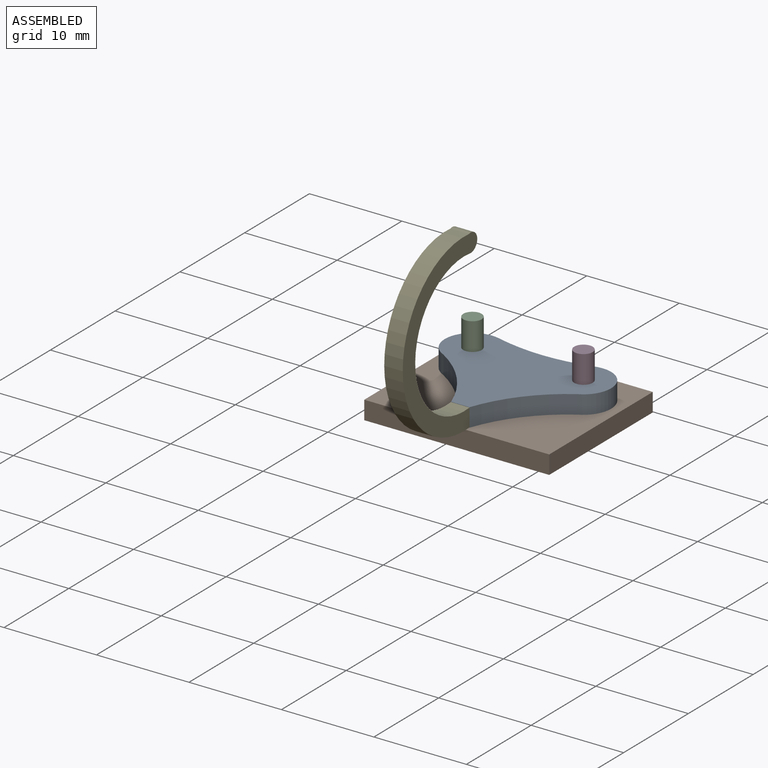
[diagram: assembled view]
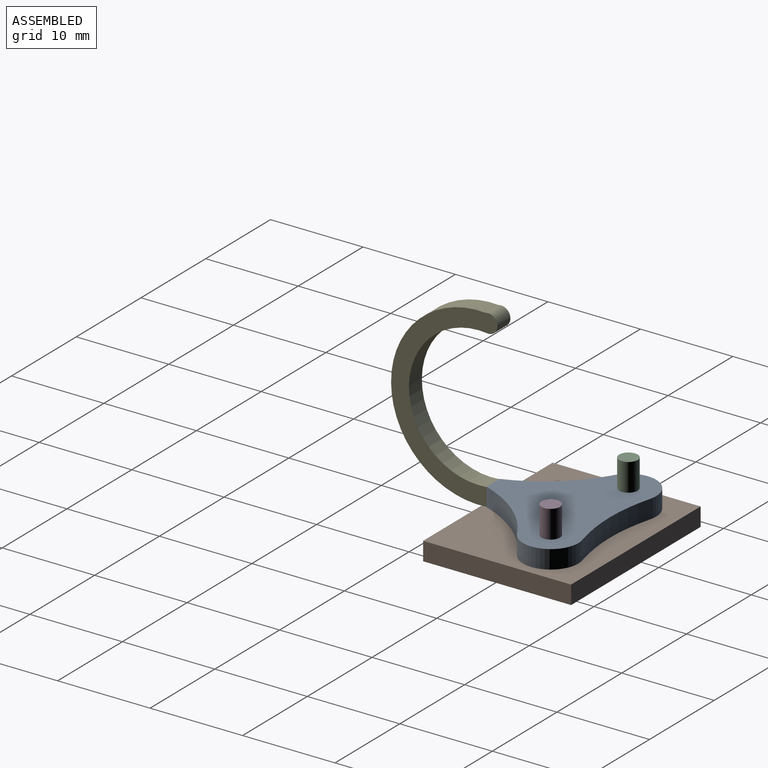
[diagram: assembled view, second angle]
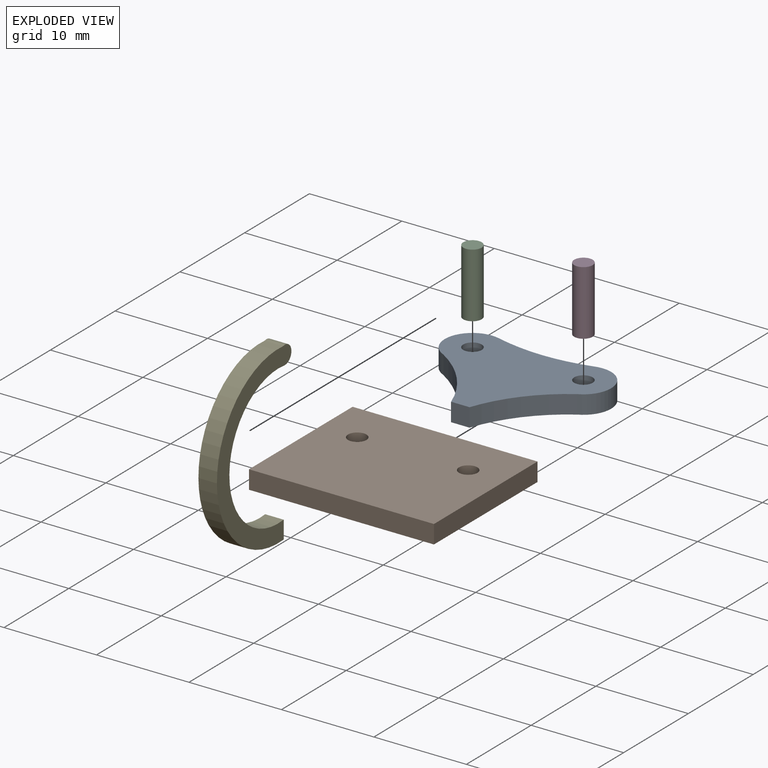
[diagram: exploded view]
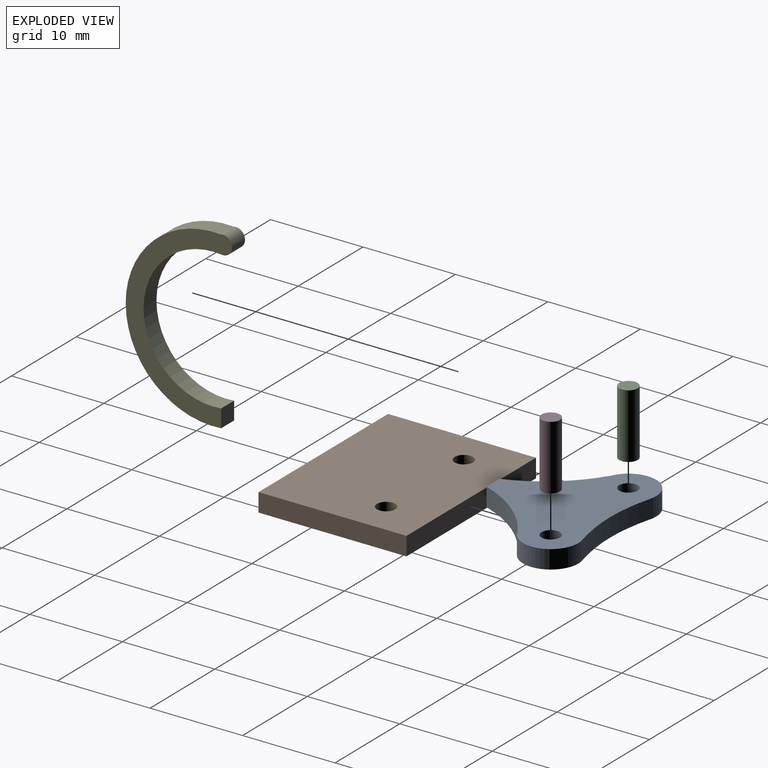
[diagram: exploded view, second angle]
ASSEMBLY  parts=5 mates=4
PART A: 11 faces, bbox 18x13.4x2 mm
  f0: cylinder r=20.07mm len=5.13mm, axis (0,0,-1), area 10.4mm2, adj f1,f8,f9,f10
  f1: cylinder r=3mm len=5.73mm, axis (0,0,-1), area 18.1mm2, adj f0,f2,f9,f10
  f2: cylinder r=15mm len=7.71mm, axis (0,0,-1), area 20.2mm2, adj f1,f3,f9,f10
  f3: plane 2x2mm, normal (0,-1,0), area 4mm2, adj f2,f4,f9,f10
  f4: cylinder r=15mm len=7.71mm, axis (0,0,-1), area 20.2mm2, adj f3,f5,f9,f10
  f5: cylinder r=3mm len=5.73mm, axis (0,0,-1), area 18.1mm2, adj f4,f8,f9,f10
  f6: cylinder r=1mm len=2mm, axis (0,0,-1), area 12.6mm2, adj f9,f10
  f7: cylinder r=1mm len=2mm, axis (0,0,-1), area 12.6mm2, adj f9,f10
  f8: cylinder r=20.07mm len=5.13mm, axis (0,0,-1), area 10.4mm2, adj f0,f5,f9,f10
  f9: plane 18x13.45mm, normal (0,0,1), area 136.6mm2, adj f0,f1,f2,f3,f4,f5,f6,f7
  f10: plane 18x13.45mm, normal (0,0,-1), area 136.6mm2, adj f0,f1,f2,f3,f4,f5,f6,f7
PART B: 8 faces, bbox 20x16x2 mm
  f0: plane 20x2mm, normal (0,-1,0), area 40mm2, adj f1,f5,f6,f7
  f1: plane 16x2mm, normal (1,0,0), area 32mm2, adj f0,f2,f6,f7
  f2: plane 20x2mm, normal (0,1,0), area 40mm2, adj f1,f5,f6,f7
  f3: cylinder r=1mm len=2mm, axis (0,0,1), area 12.6mm2, adj f6,f7
  f4: cylinder r=1mm len=2mm, axis (0,0,1), area 12.6mm2, adj f6,f7
  f5: plane 16x2mm, normal (-1,0,0), area 32mm2, adj f0,f2,f6,f7
  f6: plane 20x16mm, normal (0,0,-1), area 313.7mm2, adj f0,f1,f2,f3,f4,f5
  f7: plane 20x16mm, normal (0,0,1), area 313.7mm2, adj f0,f1,f2,f3,f4,f5
PART C: 3 faces, bbox 2x2x7 mm
  f0: cylinder r=1mm len=7mm, axis (0,0,-1), area 44mm2, adj f1,f2
  f1: plane 2x2mm, normal (0,0,1), area 3.1mm2, adj f0
  f2: plane 2x2mm, normal (0,0,-1), area 3.1mm2, adj f0
PART D: 3 faces, bbox 2x2x7 mm
  f0: cylinder r=1mm len=7mm, axis (0,0,-1), area 44mm2, adj f1,f2
  f1: plane 2x2mm, normal (0,0,1), area 3.1mm2, adj f0
  f2: plane 2x2mm, normal (0,0,-1), area 3.1mm2, adj f0
PART E: 6 faces, bbox 19x11.5x2 mm
  f0: cylinder r=9.5mm len=19mm, axis (0,0,-1), area 62.8mm2, adj f1,f3,f4,f5
  f1: cylinder r=1mm len=2mm, axis (0,0,-1), area 6.9mm2, adj f0,f2,f4,f5
  f2: cylinder r=7.57mm len=15.15mm, axis (0,0,-1), area 51.2mm2, adj f1,f3,f4,f5
  f3: plane 2x1.94mm, normal (0,1,0), area 3.9mm2, adj f0,f2,f4,f5
  f4: plane 19.01x11.51mm, normal (0,0,1), area 56.8mm2, adj f0,f1,f2,f3
  f5: plane 19.01x11.51mm, normal (0,0,-1), area 56.8mm2, adj f0,f1,f2,f3
PLACE A t=(-32.28,-25.66,7.21)mm
PLACE B t=(1.93,-17.12,7.21)mm
PLACE C t=(-41.85,0.74,5.21)mm
PLACE D t=(-23.09,0.74,5.21)mm
PLACE E rot(axis=(0,-1,0),90deg) t=(-7.07,-34.22,62.65)mm
MATE fastened C.f0 <-> B.f3  axis (0,0,-1) through (-14.07,-6.12,5.21)mm
MATE fastened D.f0 <-> B.f4  axis (0,0,-1) through (-2.07,-6.12,5.21)mm
MATE fastened A.f1 <-> B.f3  axis (0,0,-1) through (-14.07,-6.12,7.21)mm
MATE fastened E.f3 <-> A.f3  axis (0,1,0) through (-8.07,-16.57,8.21)mm
